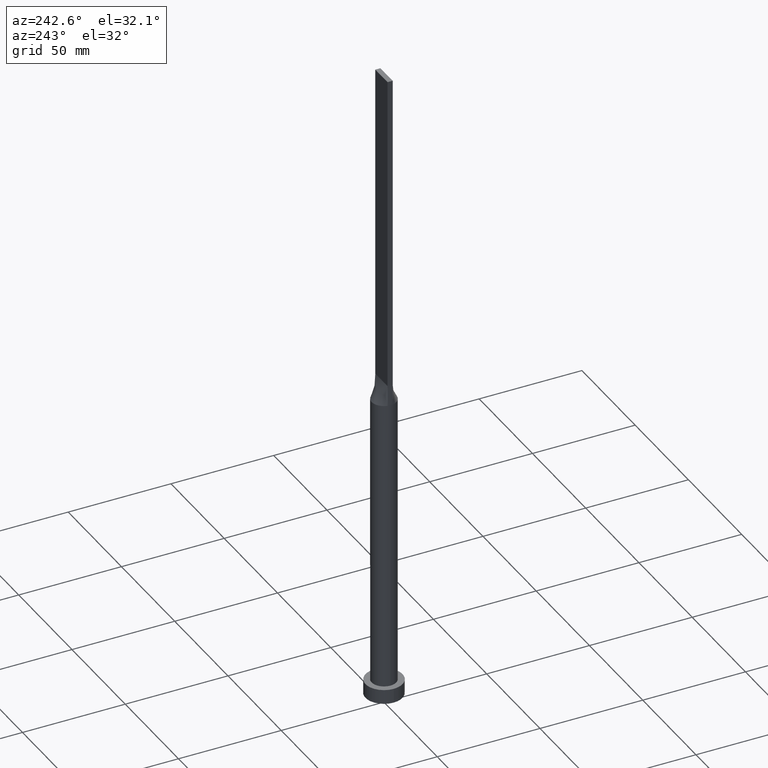
[diagram: clean part render]
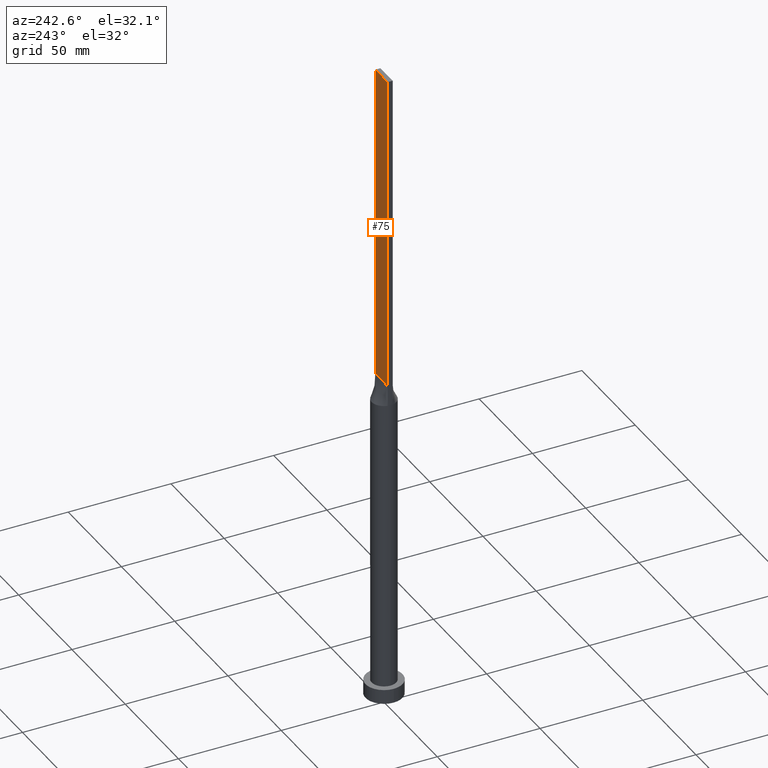
[diagram: same view with one face highlighted and labeled with its STEP entity id]
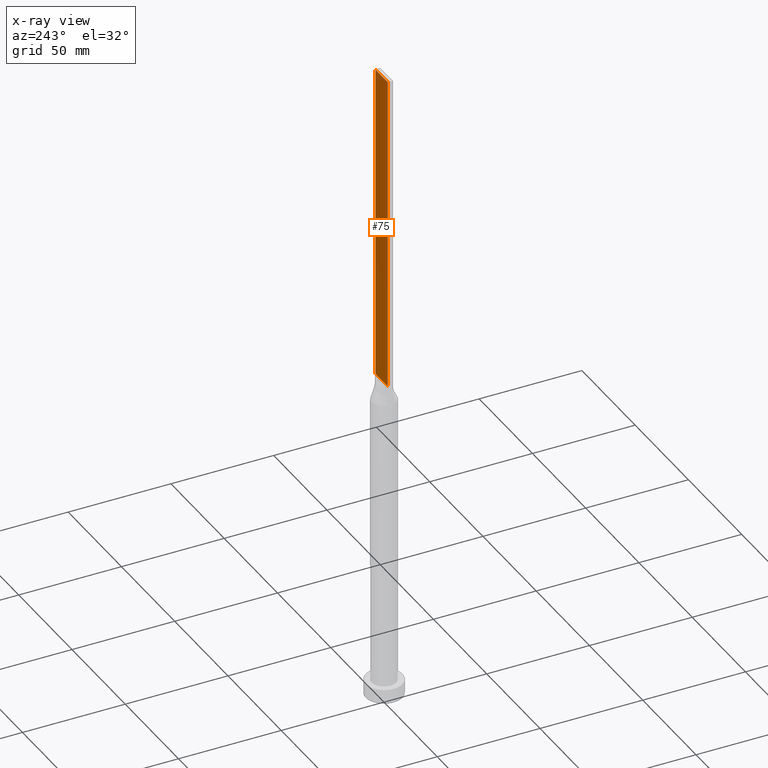
[diagram: x-ray of the same camera — body ghosted, the highlighted face saturated]
A machine part, auxiliary view. The second image highlights one B-rep face of the part: STEP entity #75.
The next image is the same camera in x-ray: the body ghosted, the highlighted face saturated — about 0% of this face is hidden behind the body in this view.
In plain terms, the highlighted planar face has unit normal (0, -1, 0).
Its self-contained STEP definition (entity closure, byte-faithful):
#21 = VECTOR ( 'NONE', #221, 1000.000000000000000 ) ;
#75 = ADVANCED_FACE ( 'NONE', ( #215 ), #397, .F. ) ;
#80 = LINE ( 'NONE', #127, #428 ) ;
#84 = EDGE_CURVE ( 'NONE', #500, #250, #80, .T. ) ;
#114 = CARTESIAN_POINT ( 'NONE',  ( -5.750000000000000000, 1.250000000000000222, 160.0000000000000000 ) ) ;
#122 = LINE ( 'NONE', #310, #21 ) ;
#123 = CARTESIAN_POINT ( 'NONE',  ( -5.750000000000000000, 1.250000000000000222, 315.0000000000000000 ) ) ;
#127 = CARTESIAN_POINT ( 'NONE',  ( -5.750000000000000000, 1.250000000000000222, 160.0000000000000000 ) ) ;
#131 = DIRECTION ( 'NONE',  ( -1.000000000000000000, 0.000000000000000000, 0.000000000000000000 ) ) ;
#134 = VECTOR ( 'NONE', #131, 1000.000000000000000 ) ;
#141 = VERTEX_POINT ( 'NONE', #521 ) ;
#212 = ORIENTED_EDGE ( 'NONE', *, *, #313, .T. ) ;
#215 = FACE_OUTER_BOUND ( 'NONE', #290, .T. ) ;
#220 = VECTOR ( 'NONE', #257, 1000.000000000000000 ) ;
#221 = DIRECTION ( 'NONE',  ( -0.000000000000000000, -0.000000000000000000, -1.000000000000000000 ) ) ;
#250 = VERTEX_POINT ( 'NONE', #114 ) ;
#257 = DIRECTION ( 'NONE',  ( -0.000000000000000000, -0.000000000000000000, -1.000000000000000000 ) ) ;
#262 = LINE ( 'NONE', #123, #220 ) ;
#271 = CARTESIAN_POINT ( 'NONE',  ( 5.750000000000000000, 1.250000000000000222, 160.0000000000000000 ) ) ;
#290 = EDGE_LOOP ( 'NONE', ( #433, #525, #344, #212 ) ) ;
#306 = DIRECTION ( 'NONE',  ( -1.000000000000000000, -0.000000000000000000, -0.000000000000000000 ) ) ;
#310 = CARTESIAN_POINT ( 'NONE',  ( 5.750000000000000000, 1.250000000000000222, 315.0000000000000000 ) ) ;
#313 = EDGE_CURVE ( 'NONE', #141, #500, #122, .T. ) ;
#315 = CARTESIAN_POINT ( 'NONE',  ( 5.750000000000000000, 1.250000000000000222, 315.0000000000000000 ) ) ;
#327 = CARTESIAN_POINT ( 'NONE',  ( -5.750000000000000000, 1.250000000000000222, 315.0000000000000000 ) ) ;
#331 = EDGE_CURVE ( 'NONE', #141, #435, #488, .T. ) ;
#344 = ORIENTED_EDGE ( 'NONE', *, *, #331, .F. ) ;
#349 = DIRECTION ( 'NONE',  ( 0.000000000000000000, -1.000000000000000000, 0.000000000000000000 ) ) ;
#397 = PLANE ( 'NONE',  #508 ) ;
#428 = VECTOR ( 'NONE', #306, 1000.000000000000000 ) ;
#433 = ORIENTED_EDGE ( 'NONE', *, *, #84, .T. ) ;
#435 = VERTEX_POINT ( 'NONE', #327 ) ;
#488 = LINE ( 'NONE', #315, #134 ) ;
#500 = VERTEX_POINT ( 'NONE', #271 ) ;
#508 = AXIS2_PLACEMENT_3D ( 'NONE', #586, #349, #539 ) ;
#521 = CARTESIAN_POINT ( 'NONE',  ( 5.750000000000000000, 1.250000000000000222, 315.0000000000000000 ) ) ;
#525 = ORIENTED_EDGE ( 'NONE', *, *, #584, .F. ) ;
#539 = DIRECTION ( 'NONE',  ( 0.000000000000000000, -0.000000000000000000, -1.000000000000000000 ) ) ;
#584 = EDGE_CURVE ( 'NONE', #435, #250, #262, .T. ) ;
#586 = CARTESIAN_POINT ( 'NONE',  ( 5.750000000000000000, 1.250000000000000222, 315.0000000000000000 ) ) ;